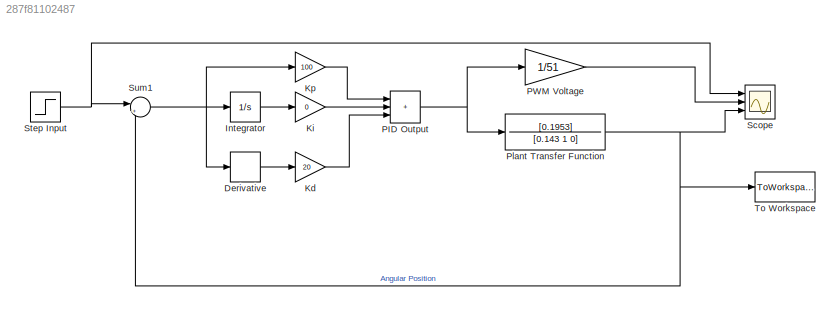
MODEL slx_287f81102487
KIND model
CONFIG AbsTol = auto
CONFIG EnableMultiTasking = off
CONFIG FixedStep = .01
CONFIG MaxStep = auto
CONFIG MinStep = auto
CONFIG RelTol = 1e-3
CONFIG SampleTimeConstraint = Unconstrained
CONFIG SolverName = ode4
CONFIG StartTime = 0.0
CONFIG StopTime = 2
BLOCK [Derivative] Derivative
BLOCK [Integrator] Integrator
  Ports = [1, 1]
BLOCK [Gain] Kd
  Gain = 20
BLOCK [Gain] Ki
  Gain = 0
BLOCK [Gain] Kp
  Gain = 100
BLOCK [Sum] PID Output
  IconShape = rectangular
  Inputs = +++
  Ports = [3, 1]
BLOCK [Gain] PWM Voltage
  Gain = 1/51
BLOCK [TransferFcn] Plant Transfer Function
  Denominator = [0.143 1 0]
  Numerator = [0.1953]
BLOCK [Scope] Scope
  Floating = off
  NumInputPorts = 3
  Ports = [3]
  ScopeSpecificationString = Simulink.scopes.TimeScopeBlockCfg('CurrentConfiguration', extmgr.ConfigurationSet(extmgr.Configuration('Core','General UI',true),extmgr.Configuration('Core','Source UI',true),extmgr.Configuration('Sources','WiredSimulink',true),extmgr.Configuration('Visuals','Time Domain',true,'SerializedDisplays',{struct('MinYLimReal','-0.12279','MaxYLimReal','1.12475','YLabelReal','','MinYLimMag','0.00000','MaxY...<+1460ch>
BLOCK [Step] Step Input
  After = pi/2
  SampleTime = 0
  Time = 0
BLOCK [Sum] Sum1
  Inputs = |+-
  Ports = [2, 1]
BLOCK [ToWorkspace] To Workspace
  FixptAsFi = on
  MaxDataPoints = inf
  Ports = [1]
  SampleTime = -1
  SaveFormat = Timeseries
  VariableName = sim_data_100_0_20
LINE Derivative:1 -> Kd:1
LINE Integrator:1 -> Ki:1
LINE Kd:1 -> PID Output:3
LINE Ki:1 -> PID Output:2
LINE Kp:1 -> PID Output:1
NET PID Output:1 -> PWM Voltage:1, Plant Transfer Function:1
LINE PWM Voltage:1 -> Scope:2
NET Plant Transfer Function:1 -> Scope:3, Sum1:2, To Workspace:1
NET Step Input:1 -> Scope:1, Sum1:1
NET Sum1:1 -> Derivative:1, Integrator:1, Kp:1
note: NET lines group one-source signal fan-out (src -> all destinations, sorted); 1:1 wires keep LINE
